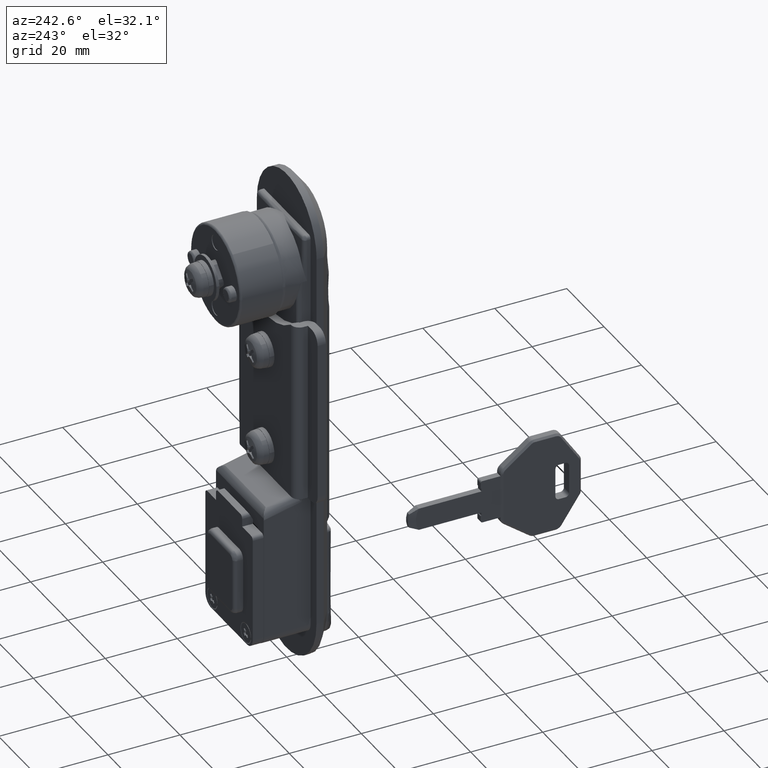
[diagram: clean part render]
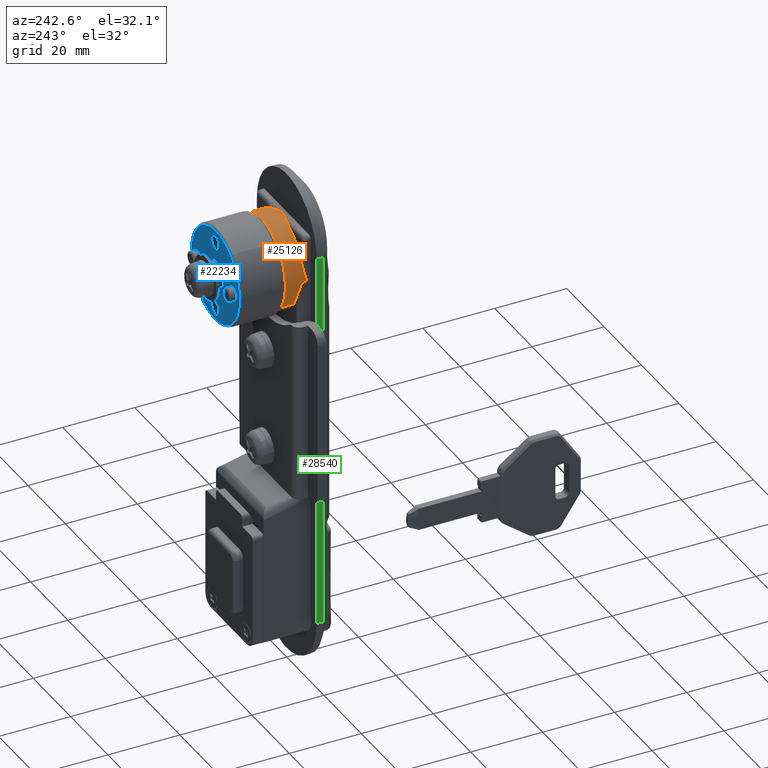
[diagram: same view with three faces highlighted in distinct colors, each labeled with its STEP entity id]
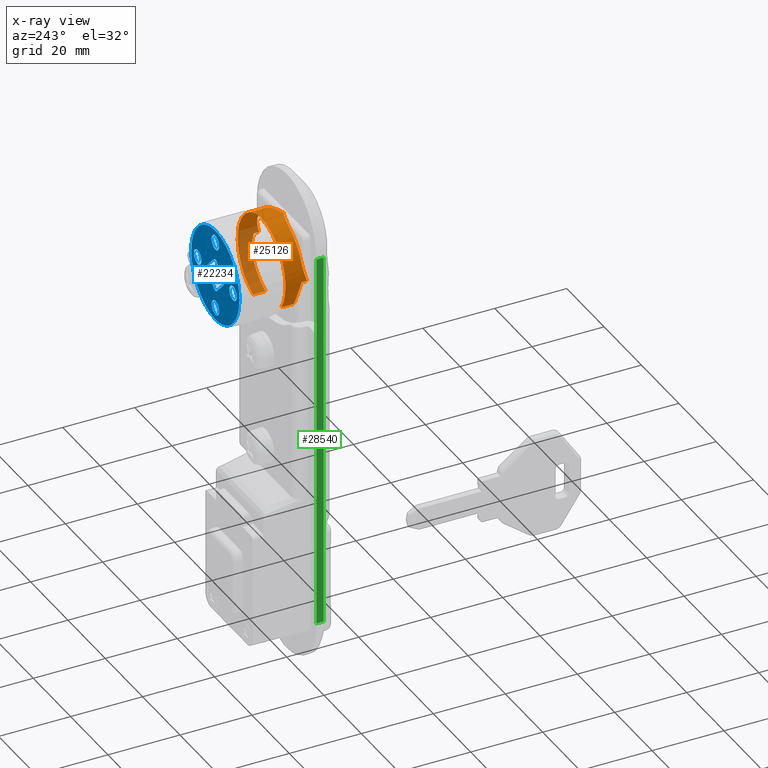
[diagram: x-ray of the same camera — body ghosted, the three highlighted faces saturated]
A machine part, auxiliary view with three faces highlighted in distinct colors.
The next image is the same camera in x-ray (body ghosted, the three faces saturated) — at least one of them is partly hidden behind the body in this view.
Their STEP definitions:

[orange] entity #25126 — the highlighted face is a freeform B-spline surface patch.
#24810=CARTESIAN_POINT('',(7.150000001382224,-4.579050644034766,-11.952919944196662));
#24811=CARTESIAN_POINT('',(7.150000001382225,-5.997858642275454,-11.409388011453791));
#24812=CARTESIAN_POINT('',(7.150000001382224,-7.249999831873780,-10.548815214362090));
#24813=CARTESIAN_POINT('',(7.150000001382225,-17.798815046235759,-3.298815381724110));
#24814=CARTESIAN_POINT('',(7.150000001382224,-10.548815213597781,7.249999832637870));
#24815=CARTESIAN_POINT('',(7.150000001382225,-3.298815380959795,17.798815046999845));
#24816=CARTESIAN_POINT('',(7.150000001382224,7.249999833402186,10.548815214361870));
#24817=CARTESIAN_POINT('',(7.150000001382225,17.798815047764172,3.298815381723883));
#24818=CARTESIAN_POINT('',(7.150000001382224,10.548815215126179,-7.249999832638097));
#24819=CARTESIAN_POINT('',(0.846249999964337,-4.579050644034766,-11.952919944196662));
#24820=CARTESIAN_POINT('',(0.846249999964337,-5.997858642275454,-11.409388011453791));
#24821=CARTESIAN_POINT('',(0.846249999964337,-7.249999831873780,-10.548815214362090));
#24822=CARTESIAN_POINT('',(0.846249999964337,-17.798815046235759,-3.298815381724110));
#24823=CARTESIAN_POINT('',(0.846249999964337,-10.548815213597781,7.249999832637870));
#24824=CARTESIAN_POINT('',(0.846249999964337,-3.298815380959795,17.798815046999845));
#24825=CARTESIAN_POINT('',(0.846249999964337,7.249999833402186,10.548815214361870));
#24826=CARTESIAN_POINT('',(0.846249999964337,17.798815047764172,3.298815381723883));
#24827=CARTESIAN_POINT('',(0.846249999964337,10.548815215126179,-7.249999832638097));
#24835=(BOUNDED_SURFACE()B_SPLINE_SURFACE(2,1,((#24810,#24819),(#24811,#24820),(#24812,#24821),(#24813,#24822),(#24814,#24823),(#24815,#24824),(#24816,#24825),(#24817,#24826),(#24818,#24827)),.UNSPECIFIED.,.F.,.F.,.U.)B_SPLINE_SURFACE_WITH_KNOTS((3,2,2,2,3),(2,2),(0.0,3.393237502960454,24.600971896463282,45.808706289966118,67.016440683468943),(0.0,6.303750001417888),.UNSPECIFIED.)GEOMETRIC_REPRESENTATION_ITEM()RATIONAL_B_SPLINE_SURFACE(((0.921270302782944,0.921270302782944),(0.953137084989848,0.953137084989848),(1.0,1.0),(0.707106781186548,0.707106781186548),(1.0,1.0),(0.707106781186548,0.707106781186548),(1.0,1.0),(0.707106781186548,0.707106781186548),(1.0,1.0)))REPRESENTATION_ITEM('')SURFACE());
#24836=CARTESIAN_POINT('',(3.499999999998567,-4.579050644041379,-11.952919944194139));
#24837=VERTEX_POINT('',#24836);
#24838=CARTESIAN_POINT('',(3.499999999998960,-11.799999999735800,-4.959838705866060));
#24839=VERTEX_POINT('',#24838);
#24840=CARTESIAN_POINT('',(3.499999999998567,-4.579050644041379,-11.952919944194138));
#24841=CARTESIAN_POINT('',(3.499999999998677,-9.682383066361270,-9.997881532808250));
#24842=CARTESIAN_POINT('',(3.499999999998960,-11.799999999735800,-4.959838705866060));
#24850=(BOUNDED_CURVE()B_SPLINE_CURVE(2,(#24840,#24841,#24842),.UNSPECIFIED.,.F.,.U.)B_SPLINE_CURVE_WITH_KNOTS((3,3),(0.658297067399934,1.0),.UNSPECIFIED.)CURVE()GEOMETRIC_REPRESENTATION_ITEM()RATIONAL_B_SPLINE_CURVE((0.927697253472302,0.885811614018996,1.0))REPRESENTATION_ITEM(''));
#24851=EDGE_CURVE('',#24837,#24839,#24850,.T.);
#24852=ORIENTED_EDGE('',*,*,#24851,.F.);
#24853=CARTESIAN_POINT('',(6.999999999999301,-4.579050644104433,-11.952919944170000));
#24854=VERTEX_POINT('',#24853);
#24855=CARTESIAN_POINT('',(6.999999999999301,-4.579050644104433,-11.952919944170000));
#24856=CARTESIAN_POINT('',(3.499999999998567,-4.579050644041379,-11.952919944194139));
#24857=QUASI_UNIFORM_CURVE('',1,(#24855,#24856),.UNSPECIFIED.,.F.,.U.);
#24858=EDGE_CURVE('',#24854,#24837,#24857,.T.);
#24859=ORIENTED_EDGE('',*,*,#24858,.F.);
#24860=CARTESIAN_POINT('',(6.999999999999300,7.642029E-010,12.800000000000150));
#24861=VERTEX_POINT('',#24860);
#24862=CARTESIAN_POINT('',(6.999999999999301,-4.579050644104434,-11.952919944170000));
#24863=CARTESIAN_POINT('',(6.999999999999300,-12.799999999236057,-8.803551955215514));
#24864=CARTESIAN_POINT('',(6.999999999999300,-12.799999999236061,-1.136868E-013));
#24865=CARTESIAN_POINT('',(6.999999999999300,-12.799999999236057,12.800000000000150));
#24866=CARTESIAN_POINT('',(6.999999999999300,7.642029E-010,12.800000000000150));
#24874=(BOUNDED_CURVE()B_SPLINE_CURVE(2,(#24862,#24863,#24864,#24865,#24866),.UNSPECIFIED.,.F.,.U.)B_SPLINE_CURVE_WITH_KNOTS((3,2,3),(0.560749030873936,0.750000000000000,1.0),.UNSPECIFIED.)CURVE()GEOMETRIC_REPRESENTATION_ITEM()RATIONAL_B_SPLINE_CURVE((0.892245166213956,0.778278697956407,1.0,0.707106781186548,1.0))REPRESENTATION_ITEM(''));
#24875=EDGE_CURVE('',#24854,#24861,#24874,.T.);
#24876=ORIENTED_EDGE('',*,*,#24875,.T.);
#24877=CARTESIAN_POINT('',(7.000000001348484,12.800000000764459,-8.886080E-014));
#24878=VERTEX_POINT('',#24877);
#24879=CARTESIAN_POINT('',(6.999999999999300,7.642029E-010,12.800000000000150));
#24880=CARTESIAN_POINT('',(6.999999999999300,12.800000000764411,12.800000000000152));
#24881=CARTESIAN_POINT('',(7.000000001348484,12.800000000764463,-8.886080E-014));
#24889=(BOUNDED_CURVE()B_SPLINE_CURVE(2,(#24879,#24880,#24881),.UNSPECIFIED.,.F.,.U.)B_SPLINE_CURVE_WITH_KNOTS((3,3),(0.0,0.249999999999999),.UNSPECIFIED.)CURVE()GEOMETRIC_REPRESENTATION_ITEM()RATIONAL_B_SPLINE_CURVE((1.0,0.707106781186548,0.999999999999998))REPRESENTATION_ITEM(''));
#24890=EDGE_CURVE('',#24861,#24878,#24889,.T.);
#24891=ORIENTED_EDGE('',*,*,#24890,.T.);
#24892=CARTESIAN_POINT('',(7.000000000720023,10.548815215124179,-7.249999832639374));
#24893=VERTEX_POINT('',#24892);
#24894=CARTESIAN_POINT('',(7.000000001348482,12.800000000764456,-8.886080E-014));
#24895=CARTESIAN_POINT('',(7.000000000742459,12.800000000764481,-3.974505644325337));
#24896=CARTESIAN_POINT('',(7.000000000720023,10.548815215124183,-7.249999832639374));
#24904=(BOUNDED_CURVE()B_SPLINE_CURVE(2,(#24894,#24895,#24896),.UNSPECIFIED.,.F.,.U.)B_SPLINE_CURVE_WITH_KNOTS((3,3),(0.249999999999999,0.347270617136061),.UNSPECIFIED.)CURVE()GEOMETRIC_REPRESENTATION_ITEM()RATIONAL_B_SPLINE_CURVE((1.000000000000002,0.886040383404193,0.860760144687290))REPRESENTATION_ITEM(''));
#24905=EDGE_CURVE('',#24878,#24893,#24904,.T.);
#24906=ORIENTED_EDGE('',*,*,#24905,.T.);
#24907=CARTESIAN_POINT('',(3.499999999998831,10.548815215097340,-7.249999832680063));
#24908=VERTEX_POINT('',#24907);
#24909=CARTESIAN_POINT('',(7.000000000720023,10.548815215124179,-7.249999832639374));
#24910=CARTESIAN_POINT('',(3.499999999998831,10.548815215097340,-7.249999832680063));
#24911=QUASI_UNIFORM_CURVE('',1,(#24909,#24910),.UNSPECIFIED.,.F.,.U.);
#24912=EDGE_CURVE('',#24893,#24908,#24911,.T.);
#24913=ORIENTED_EDGE('',*,*,#24912,.T.);
#24914=CARTESIAN_POINT('',(3.499999999998960,11.800000000264200,-4.959838708245140));
#24915=VERTEX_POINT('',#24914);
#24916=CARTESIAN_POINT('',(3.499999999998960,11.800000000264200,-4.959838708245140));
#24917=CARTESIAN_POINT('',(3.499999999998892,11.291748010857519,-6.169025907170577));
#24918=CARTESIAN_POINT('',(3.499999999998831,10.548815215097344,-7.249999832680063));
#24926=(BOUNDED_CURVE()B_SPLINE_CURVE(2,(#24916,#24917,#24918),.UNSPECIFIED.,.F.,.U.)B_SPLINE_CURVE_WITH_KNOTS((3,3),(0.0,0.089806107575686),.UNSPECIFIED.)CURVE()GEOMETRIC_REPRESENTATION_ITEM()RATIONAL_B_SPLINE_CURVE((1.0,0.969989094336202,0.950758839162350))REPRESENTATION_ITEM(''));
#24927=EDGE_CURVE('',#24915,#24908,#24926,.T.);
#24928=ORIENTED_EDGE('',*,*,#24927,.F.);
#24929=CARTESIAN_POINT('',(2.499999999998520,12.800000000264260,5.817889E-015));
#24930=VERTEX_POINT('',#24929);
#24931=CARTESIAN_POINT('',(3.499999999998960,11.800000000264200,-4.959838708245140));
#24932=CARTESIAN_POINT('',(3.499999999998942,11.884726401125709,-4.758265312630199));
#24933=CARTESIAN_POINT('',(3.489410561102811,11.963668342394341,-4.556020745211326));
#24934=CARTESIAN_POINT('',(3.453537798859467,12.110622360669330,-4.149639897037440));
#24935=CARTESIAN_POINT('',(3.428183058231920,12.178629006988340,-3.945510197913007));
#24936=CARTESIAN_POINT('',(3.366498447819640,12.304047770071691,-3.535033759906537));
#24937=CARTESIAN_POINT('',(3.330141097253486,12.361457771318429,-3.328689545036238));
#24938=CARTESIAN_POINT('',(3.269298858079651,12.439743335096690,-3.017323126720502));
#24939=CARTESIAN_POINT('',(3.247980087713689,12.464500908161719,-2.913338776275924));
#24940=CARTESIAN_POINT('',(3.203706951709756,12.511218809301370,-2.705684686132547));
#24941=CARTESIAN_POINT('',(3.180730773472400,12.533207482249100,-2.601903785874174));
#24942=CARTESIAN_POINT('',(3.062277185823335,12.636448401412650,-2.083089334613497));
#24943=CARTESIAN_POINT('',(2.956275037693372,12.697696606606980,-1.668289420689425));
#24944=CARTESIAN_POINT('',(2.789417914019506,12.759035347792880,-1.044360658288625));
#24945=CARTESIAN_POINT('',(2.732451460042499,12.774372291553499,-0.836103531556464));
#24946=CARTESIAN_POINT('',(2.645890247418877,12.789734710444090,-0.523068055615682));
#24947=CARTESIAN_POINT('',(2.602330502764916,12.795503596742360,-0.366387998105746));
#24948=CARTESIAN_POINT('',(2.558515623957663,12.798393812567589,-0.209421671846968));
#24949=CARTESIAN_POINT('',(2.529267041885287,12.799678810158770,-0.104709001437801));
#24950=CARTESIAN_POINT('',(2.514579409056580,12.800000000514320,-0.052161805838285));
#24951=CARTESIAN_POINT('',(2.499999999998520,12.800000000264260,5.817889E-015));
#24952=B_SPLINE_CURVE_WITH_KNOTS('',3,(#24931,#24932,#24933,#24934,#24935,#24936,#24937,#24938,#24939,#24940,#24941,#24942,#24943,#24944,#24945,#24946,#24947,#24948,#24949,#24950,#24951),.UNSPECIFIED.,.F.,.U.,(4,2,2,2,2,2,2,2,1,2,4),(0.0,0.125000000000000,0.250000000000000,0.375000000000000,0.437500000000000,0.500000000000000,0.750000000000000,0.875000000000000,0.937500000000000,0.968750000000000,1.0),.UNSPECIFIED.);
#24953=EDGE_CURVE('',#24915,#24930,#24952,.T.);
#24954=ORIENTED_EDGE('',*,*,#24953,.T.);
#24955=CARTESIAN_POINT('',(0.999999999998920,12.800000000264200,-7.759148E-016));
#24956=VERTEX_POINT('',#24955);
#24957=CARTESIAN_POINT('',(0.999999999998920,12.800000000264200,-7.759148E-016));
#24958=CARTESIAN_POINT('',(2.499999999998520,12.800000000264260,5.817889E-015));
#24959=QUASI_UNIFORM_CURVE('',1,(#24957,#24958),.UNSPECIFIED.,.F.,.U.);
#24960=EDGE_CURVE('',#24956,#24930,#24959,.T.);
#24961=ORIENTED_EDGE('',*,*,#24960,.F.);
#24962=CARTESIAN_POINT('',(1.999999999998920,11.800000000264200,4.959838708244910));
#24963=VERTEX_POINT('',#24962);
#24964=CARTESIAN_POINT('',(0.999999999998920,12.800000000264200,-7.759148E-016));
#24965=CARTESIAN_POINT('',(1.014579409057003,12.800000000514320,0.052161805838050));
#24966=CARTESIAN_POINT('',(1.029267041885679,12.799678810158770,0.104709001437574));
#24967=CARTESIAN_POINT('',(1.058515623958044,12.798393812567589,0.209421671846741));
#24968=CARTESIAN_POINT('',(1.102330502765284,12.795503596742360,0.366387998105521));
#24969=CARTESIAN_POINT('',(1.145890247419230,12.789734710444090,0.523068055615458));
#24970=CARTESIAN_POINT('',(1.232451460042826,12.774372291553499,0.836103531556242));
#24971=CARTESIAN_POINT('',(1.289417914019818,12.759035347792880,1.044360658288402));
#24972=CARTESIAN_POINT('',(1.456275037693629,12.697696606606980,1.668289420689205));
#24973=CARTESIAN_POINT('',(1.562277185823551,12.636448401412650,2.083089334613282));
#24974=CARTESIAN_POINT('',(1.680730773472570,12.533207482249090,2.601903785873958));
#24975=CARTESIAN_POINT('',(1.703706951709918,12.511218809301360,2.705684686132333));
#24976=CARTESIAN_POINT('',(1.747980087713832,12.464500908161710,2.913338776275710));
#24977=CARTESIAN_POINT('',(1.769298858079784,12.439743335096690,3.017323126720289));
#24978=CARTESIAN_POINT('',(1.830141097253592,12.361457771318429,3.328689545036021));
#24979=CARTESIAN_POINT('',(1.866498447819729,12.304047770071680,3.535033759906322));
#24980=CARTESIAN_POINT('',(1.928183058231970,12.178629006988340,3.945510197912787));
#24981=CARTESIAN_POINT('',(1.953537798859498,12.110622360669330,4.149639897037218));
#24982=CARTESIAN_POINT('',(1.989410561102806,11.963668342394341,4.556020745211100));
#24983=CARTESIAN_POINT('',(1.999999999998920,11.884726401125700,4.758265312629972));
#24984=CARTESIAN_POINT('',(1.999999999998920,11.800000000264200,4.959838708244910));
#24985=B_SPLINE_CURVE_WITH_KNOTS('',3,(#24964,#24965,#24966,#24967,#24968,#24969,#24970,#24971,#24972,#24973,#24974,#24975,#24976,#24977,#24978,#24979,#24980,#24981,#24982,#24983,#24984),.UNSPECIFIED.,.F.,.U.,(4,2,1,2,2,2,2,2,2,2,4),(0.0,0.031250000000000,0.062500000000000,0.125000000000000,0.250000000000000,0.500000000000000,0.562500000000000,0.625000000000000,0.750000000000000,0.875000000000000,1.0),.UNSPECIFIED.);
#24986=EDGE_CURVE('',#24956,#24963,#24985,.T.);
#24987=ORIENTED_EDGE('',*,*,#24986,.T.);
#24988=CARTESIAN_POINT('',(1.999999999998920,4.959838707869841,11.799999999978800));
#24989=VERTEX_POINT('',#24988);
#24990=CARTESIAN_POINT('',(1.999999999998920,4.959838707869835,11.799999999978800));
#24991=CARTESIAN_POINT('',(1.999999999998921,9.775750403398478,9.775750403578090));
#24992=CARTESIAN_POINT('',(1.999999999998920,11.800000000264200,4.959838708244910));
#25000=(BOUNDED_CURVE()B_SPLINE_CURVE(2,(#24990,#24991,#24992),.UNSPECIFIED.,.F.,.U.)CURVE()GEOMETRIC_REPRESENTATION_ITEM()QUASI_UNIFORM_CURVE()RATIONAL_B_SPLINE_CURVE((1.0,0.925859031375435,1.0))REPRESENTATION_ITEM(''));
#25001=EDGE_CURVE('',#24989,#24963,#25000,.T.);
#25002=ORIENTED_EDGE('',*,*,#25001,.F.);
#25003=CARTESIAN_POINT('',(0.999999999998920,7.642029E-010,12.799999999989460));
#25004=VERTEX_POINT('',#25003);
#25005=CARTESIAN_POINT('',(1.999999999998920,4.959838707869841,11.799999999978800));
#25006=CARTESIAN_POINT('',(1.999999999998921,4.759411127486527,11.884244785670189));
#25007=CARTESIAN_POINT('',(1.989510246050507,4.557368802864121,11.963165707613561));
#25008=CARTESIAN_POINT('',(1.953577547801588,4.149872247376940,12.110553434214630));
#25009=CARTESIAN_POINT('',(1.928073176302037,3.944420022713683,12.179018644209091));
#25010=CARTESIAN_POINT('',(1.865682417857304,3.529967883219172,12.305538232616440));
#25011=CARTESIAN_POINT('',(1.829107638317043,3.323093304383682,12.362948075915311));
#25012=CARTESIAN_POINT('',(1.748190766750017,2.909614863621512,12.466738770912720));
#25013=CARTESIAN_POINT('',(1.703826864077867,2.702986345373103,12.513124874368311));
#25014=CARTESIAN_POINT('',(1.562171666302486,2.082780063981878,12.636445085979011));
#25015=CARTESIAN_POINT('',(1.456422292938541,1.668866781989239,12.697611065341221));
#25016=CARTESIAN_POINT('',(1.289694334339554,1.045380947607032,12.758949386646940));
#25017=CARTESIAN_POINT('',(1.232731393637459,0.837122195829004,12.774307958499501));
#25018=CARTESIAN_POINT('',(1.146112790472208,0.523869691640127,12.789702494350569));
#25019=CARTESIAN_POINT('',(1.102508796590042,0.367027390550821,12.795487402335970));
#25020=CARTESIAN_POINT('',(1.058626656445020,0.209819291284723,12.798387665456589));
#25021=CARTESIAN_POINT('',(1.029328220969988,0.104927839967644,12.799677383377510));
#25022=CARTESIAN_POINT('',(1.014618141150967,0.052299706109097,12.799999999989460));
#25023=CARTESIAN_POINT('',(0.999999999998920,7.642024E-010,12.799999999989460));
#25024=B_SPLINE_CURVE_WITH_KNOTS('',3,(#25005,#25006,#25007,#25008,#25009,#25010,#25011,#25012,#25013,#25014,#25015,#25016,#25017,#25018,#25019,#25020,#25021,#25022,#25023),.UNSPECIFIED.,.F.,.U.,(4,2,2,2,2,2,2,1,2,4),(0.0,0.125000000000000,0.250000000000000,0.375000000000000,0.500000000000000,0.750000000000000,0.875000000000000,0.937500000000000,0.968750000000000,1.0),.UNSPECIFIED.);
#25025=EDGE_CURVE('',#24989,#25004,#25024,.T.);
#25026=ORIENTED_EDGE('',*,*,#25025,.T.);
#25027=CARTESIAN_POINT('',(1.999999999998920,-4.959838706341430,11.799999999978800));
#25028=VERTEX_POINT('',#25027);
#25029=CARTESIAN_POINT('',(0.999999999998920,7.642029E-010,12.799999999989460));
#25030=CARTESIAN_POINT('',(1.029213709724266,-0.104518651425666,12.799999999989460));
#25031=CARTESIAN_POINT('',(1.058551002600142,-0.209478455020774,12.798713882041270));
#25032=CARTESIAN_POINT('',(1.116896122065571,-0.418778793315199,12.793575832402110));
#25033=CARTESIAN_POINT('',(1.145970332475474,-0.523355974209287,12.789724396167379));
#25034=CARTESIAN_POINT('',(1.232678456294643,-0.836927802471096,12.774324180871620));
#25035=CARTESIAN_POINT('',(1.289801719595781,-1.045762039121654,12.758933920084880));
#25036=CARTESIAN_POINT('',(1.401452983669305,-1.463327471297754,12.717809785126819));
#25037=CARTESIAN_POINT('',(1.455984967195622,-1.672057643189671,12.692076552494949));
#25038=CARTESIAN_POINT('',(1.561059270570663,-2.089771734623175,12.630021301370510));
#25039=CARTESIAN_POINT('',(1.611434684087522,-2.298106288768420,12.593783139661170));
#25040=CARTESIAN_POINT('',(1.753193645606944,-2.919874551565207,12.469683145367579));
#25041=CARTESIAN_POINT('',(1.835800727215239,-3.330888859065416,12.366402441527400));
#25042=CARTESIAN_POINT('',(1.927983341157264,-3.944115730974800,12.179065382049600));
#25043=CARTESIAN_POINT('',(1.953360525380202,-4.147981153154016,12.111197969352890));
#25044=CARTESIAN_POINT('',(1.980363690619520,-4.453361093264872,12.000803762361921));
#25045=CARTESIAN_POINT('',(1.987508352296854,-4.555086266479140,11.962571256401301));
#25046=CARTESIAN_POINT('',(1.997342778100739,-4.758497045095987,11.883123656305500));
#25047=CARTESIAN_POINT('',(1.999999999998919,-4.859586122626093,11.842138698724520));
#25048=CARTESIAN_POINT('',(1.999999999998920,-4.959838706341429,11.799999999978800));
#25049=B_SPLINE_CURVE_WITH_KNOTS('',3,(#25029,#25030,#25031,#25032,#25033,#25034,#25035,#25036,#25037,#25038,#25039,#25040,#25041,#25042,#25043,#25044,#25045,#25046,#25047,#25048),.UNSPECIFIED.,.F.,.U.,(4,2,2,2,2,2,2,2,2,4),(0.0,0.062500000000000,0.125000000000000,0.250000000000000,0.375000000000000,0.500000000000000,0.750000000000000,0.875000000000000,0.937500000000000,1.0),.UNSPECIFIED.);
#25050=EDGE_CURVE('',#25004,#25028,#25049,.T.);
#25051=ORIENTED_EDGE('',*,*,#25050,.T.);
#25052=CARTESIAN_POINT('',(1.999999999998920,-11.799999999735800,4.959838705865830));
#25053=VERTEX_POINT('',#25052);
#25054=CARTESIAN_POINT('',(1.999999999998920,-11.799999999735791,4.959838705865822));
#25055=CARTESIAN_POINT('',(1.999999999998921,-9.775750403257757,9.775750402994815));
#25056=CARTESIAN_POINT('',(1.999999999998920,-4.959838706341432,11.799999999978800));
#25064=(BOUNDED_CURVE()B_SPLINE_CURVE(2,(#25054,#25055,#25056),.UNSPECIFIED.,.F.,.U.)CURVE()GEOMETRIC_REPRESENTATION_ITEM()QUASI_UNIFORM_CURVE()RATIONAL_B_SPLINE_CURVE((1.0,0.925859031337343,1.0))REPRESENTATION_ITEM(''));
#25065=EDGE_CURVE('',#25053,#25028,#25064,.T.);
#25066=ORIENTED_EDGE('',*,*,#25065,.F.);
#25067=CARTESIAN_POINT('',(0.999999999998920,-12.799999999735800,-7.759148E-016));
#25068=VERTEX_POINT('',#25067);
#25069=CARTESIAN_POINT('',(1.999999999998920,-11.799999999735800,4.959838705865830));
#25070=CARTESIAN_POINT('',(1.999999999998920,-11.884726400447979,4.758265310492387));
#25071=CARTESIAN_POINT('',(1.989410561139614,-11.963668341583000,4.556020743315370));
#25072=CARTESIAN_POINT('',(1.953537799019225,-12.110622359618770,4.149639895628602));
#25073=CARTESIAN_POINT('',(1.928183058478216,-12.178629005832200,3.945510196749382));
#25074=CARTESIAN_POINT('',(1.866498448281816,-12.304047768730820,3.535033759237550));
#25075=CARTESIAN_POINT('',(1.830141097844971,-12.361457769898440,3.328689544616676));
#25076=CARTESIAN_POINT('',(1.769298858900644,-12.439743333577420,3.017323126678003));
#25077=CARTESIAN_POINT('',(1.747980088612925,-12.464500906618470,2.913338776337249));
#25078=CARTESIAN_POINT('',(1.703706952754589,-12.511218807736711,2.705684686297853));
#25079=CARTESIAN_POINT('',(1.680730774586869,-12.533207480684110,2.601903786051115));
#25080=CARTESIAN_POINT('',(1.562277187279083,-12.636448399877221,2.083089334675191));
#25081=CARTESIAN_POINT('',(1.456275039284780,-12.697696605183610,1.668289420142040));
#25082=CARTESIAN_POINT('',(1.289417916681159,-12.759035346441159,1.044360656230548));
#25083=CARTESIAN_POINT('',(1.232451463040469,-12.774372290211829,0.836103528935448));
#25084=CARTESIAN_POINT('',(1.145890252899141,-12.789734709083779,0.523068051598051));
#25085=CARTESIAN_POINT('',(1.102330509482318,-12.795503595364440,0.366387993378318));
#25086=CARTESIAN_POINT('',(1.058515637223819,-12.798393811158290,0.209421665050438));
#25087=CARTESIAN_POINT('',(1.029267069269140,-12.799678808725410,0.104708990783624));
#25088=CARTESIAN_POINT('',(1.014579773524061,-12.799999999735800,0.052161703897047));
#25089=CARTESIAN_POINT('',(0.999999999998920,-12.799999999735800,-7.759148E-016));
#25090=B_SPLINE_CURVE_WITH_KNOTS('',3,(#25069,#25070,#25071,#25072,#25073,#25074,#25075,#25076,#25077,#25078,#25079,#25080,#25081,#25082,#25083,#25084,#25085,#25086,#25087,#25088,#25089),.UNSPECIFIED.,.F.,.U.,(4,2,2,2,2,2,2,2,1,2,4),(0.0,0.125000000000000,0.250000000000000,0.375000000000000,0.437500000000000,0.500000000000000,0.750000000000000,0.875000000000000,0.937500000000000,0.968750000000000,1.0),.UNSPECIFIED.);
#25091=EDGE_CURVE('',#25053,#25068,#25090,.T.);
#25092=ORIENTED_EDGE('',*,*,#25091,.T.);
#25093=CARTESIAN_POINT('',(2.499999999998520,-12.799999999735800,5.817889E-015));
#25094=VERTEX_POINT('',#25093);
#25095=CARTESIAN_POINT('',(0.999999999998920,-12.799999999735800,-7.759148E-016));
#25096=CARTESIAN_POINT('',(2.499999999998520,-12.799999999735800,5.817889E-015));
#25097=QUASI_UNIFORM_CURVE('',1,(#25095,#25096),.UNSPECIFIED.,.F.,.U.);
#25098=EDGE_CURVE('',#25068,#25094,#25097,.T.);
#25099=ORIENTED_EDGE('',*,*,#25098,.T.);
#25100=CARTESIAN_POINT('',(2.499999999998520,-12.799999999735800,5.817889E-015));
#25101=CARTESIAN_POINT('',(2.514579773523694,-12.799999999735800,-0.052161703897266));
#25102=CARTESIAN_POINT('',(2.529267069268750,-12.799678808725410,-0.104708990783850));
#25103=CARTESIAN_POINT('',(2.558515637223437,-12.798393811158279,-0.209421665050664));
#25104=CARTESIAN_POINT('',(2.602330509481950,-12.795503595364440,-0.366387993378544));
#25105=CARTESIAN_POINT('',(2.645890252898787,-12.789734709083771,-0.523068051598276));
#25106=CARTESIAN_POINT('',(2.732451463040143,-12.774372290211829,-0.836103528935671));
#25107=CARTESIAN_POINT('',(2.789417916680854,-12.759035346441159,-1.044360656230770));
#25108=CARTESIAN_POINT('',(2.956275039284527,-12.697696605183610,-1.668289420142257));
#25109=CARTESIAN_POINT('',(3.062277187278867,-12.636448399877221,-2.083089334675406));
#25110=CARTESIAN_POINT('',(3.180730774586698,-12.533207480684119,-2.601903786051327));
#25111=CARTESIAN_POINT('',(3.203706952754427,-12.511218807736711,-2.705684686298068));
#25112=CARTESIAN_POINT('',(3.247980088612781,-12.464500906618470,-2.913338776337463));
#25113=CARTESIAN_POINT('',(3.269298858900510,-12.439743333577431,-3.017323126678220));
#25114=CARTESIAN_POINT('',(3.330141097844865,-12.361457769898440,-3.328689544616891));
#25115=CARTESIAN_POINT('',(3.366498448281728,-12.304047768730831,-3.535033759237765));
#25116=CARTESIAN_POINT('',(3.428183058478165,-12.178629005832200,-3.945510196749600));
#25117=CARTESIAN_POINT('',(3.453537799019193,-12.110622359618770,-4.149639895628822));
#25118=CARTESIAN_POINT('',(3.489410561139619,-11.963668341583000,-4.556020743315593));
#25119=CARTESIAN_POINT('',(3.499999999998943,-11.884726400447979,-4.758265310492615));
#25120=CARTESIAN_POINT('',(3.499999999998960,-11.799999999735800,-4.959838705866060));
#25121=B_SPLINE_CURVE_WITH_KNOTS('',3,(#25100,#25101,#25102,#25103,#25104,#25105,#25106,#25107,#25108,#25109,#25110,#25111,#25112,#25113,#25114,#25115,#25116,#25117,#25118,#25119,#25120),.UNSPECIFIED.,.F.,.U.,(4,2,1,2,2,2,2,2,2,2,4),(0.0,0.031250000000000,0.062500000000000,0.125000000000000,0.250000000000000,0.500000000000000,0.562500000000000,0.625000000000000,0.750000000000000,0.875000000000000,1.0),.UNSPECIFIED.);
#25122=EDGE_CURVE('',#25094,#24839,#25121,.T.);
#25123=ORIENTED_EDGE('',*,*,#25122,.T.);
#25124=EDGE_LOOP('',(#24852,#24859,#24876,#24891,#24906,#24913,#24928,#24954,#24961,#24987,#25002,#25026,#25051,#25066,#25092,#25099,#25123));
#25125=FACE_OUTER_BOUND('',#25124,.T.);
#25126=ADVANCED_FACE('',(#25125),#24835,.T.);

[blue] entity #22234 — the highlighted face is a freeform B-spline surface patch.
#19738=CARTESIAN_POINT('',(19.599999999998840,-1.986019052586908,9.736068470642916));
#19739=VERTEX_POINT('',#19738);
#19745=CARTESIAN_POINT('',(19.599999999998850,1.858780E-011,7.500000000304400));
#19746=VERTEX_POINT('',#19745);
#19747=CARTESIAN_POINT('',(19.599999999998843,-1.986019052586909,9.736068470642916));
#19748=CARTESIAN_POINT('',(19.599999999998843,-1.999999999981412,9.618448240644055));
#19749=CARTESIAN_POINT('',(19.599999999998850,-1.999999999981412,9.500000000304400));
#19750=CARTESIAN_POINT('',(19.599999999998854,-1.999999999981411,7.500000000304402));
#19751=CARTESIAN_POINT('',(19.599999999998850,1.858780E-011,7.500000000304400));
#19759=(BOUNDED_CURVE()B_SPLINE_CURVE(2,(#19747,#19748,#19749,#19750,#19751),.UNSPECIFIED.,.F.,.U.)B_SPLINE_CURVE_WITH_KNOTS((3,2,3),(0.229562473341197,0.250000000000000,0.500000000000000),.UNSPECIFIED.)CURVE()GEOMETRIC_REPRESENTATION_ITEM()RATIONAL_B_SPLINE_CURVE((0.956026753845961,0.976055948129269,1.0,0.707106781186548,1.0))REPRESENTATION_ITEM(''));
#19760=EDGE_CURVE('',#19739,#19746,#19759,.T.);
#19762=CARTESIAN_POINT('',(19.599999999998840,1.996269596850194,9.377902921036394));
#19763=VERTEX_POINT('',#19762);
#19764=CARTESIAN_POINT('',(19.599999999998850,1.858780E-011,7.500000000304400));
#19765=CARTESIAN_POINT('',(19.599999999998843,1.881412133455517,7.500000000304402));
#19766=CARTESIAN_POINT('',(19.599999999998843,1.996269596850193,9.377902921036394));
#19774=(BOUNDED_CURVE()B_SPLINE_CURVE(2,(#19764,#19765,#19766),.UNSPECIFIED.,.F.,.U.)B_SPLINE_CURVE_WITH_KNOTS((3,3),(0.500000000000000,0.739332962207690),.UNSPECIFIED.)CURVE()GEOMETRIC_REPRESENTATION_ITEM()RATIONAL_B_SPLINE_CURVE((1.0,0.719603993323325,0.976072041599737))REPRESENTATION_ITEM(''));
#19775=EDGE_CURVE('',#19746,#19763,#19774,.T.);
#19849=CARTESIAN_POINT('',(19.599999999998850,1.858780E-011,11.500000000304400));
#19850=VERTEX_POINT('',#19849);
#19851=CARTESIAN_POINT('',(19.599999999998843,1.996269596850193,9.377902921036394));
#19852=CARTESIAN_POINT('',(19.599999999998847,2.000000000018589,9.438894473508377));
#19853=CARTESIAN_POINT('',(19.599999999998850,2.000000000018588,9.500000000304400));
#19854=CARTESIAN_POINT('',(19.599999999998854,2.000000000018588,11.500000000304398));
#19855=CARTESIAN_POINT('',(19.599999999998850,1.858780E-011,11.500000000304400));
#19863=(BOUNDED_CURVE()B_SPLINE_CURVE(2,(#19851,#19852,#19853,#19854,#19855),.UNSPECIFIED.,.F.,.U.)B_SPLINE_CURVE_WITH_KNOTS((3,2,3),(0.739332962207690,0.750000000000000,1.0),.UNSPECIFIED.)CURVE()GEOMETRIC_REPRESENTATION_ITEM()RATIONAL_B_SPLINE_CURVE((0.976072041599737,0.987502787863222,1.0,0.707106781186548,1.0))REPRESENTATION_ITEM(''));
#19864=EDGE_CURVE('',#19763,#19850,#19863,.T.);
#19866=CARTESIAN_POINT('',(19.599999999998850,1.858780E-011,11.500000000304400));
#19867=CARTESIAN_POINT('',(19.599999999998847,-1.776349050037667,11.500000000304398));
#19868=CARTESIAN_POINT('',(19.599999999998840,-1.986019052586908,9.736068470642916));
#19876=(BOUNDED_CURVE()B_SPLINE_CURVE(2,(#19866,#19867,#19868),.UNSPECIFIED.,.F.,.U.)B_SPLINE_CURVE_WITH_KNOTS((3,3),(0.0,0.229562473341197),.UNSPECIFIED.)CURVE()GEOMETRIC_REPRESENTATION_ITEM()RATIONAL_B_SPLINE_CURVE((1.0,0.731050833057278,0.956026753845961))REPRESENTATION_ITEM(''));
#19877=EDGE_CURVE('',#19850,#19739,#19876,.T.);
#19924=CARTESIAN_POINT('',(19.599999999998850,-1.986019052586908,-9.263931529357084));
#19925=VERTEX_POINT('',#19924);
#19931=CARTESIAN_POINT('',(19.599999999998850,1.858780E-011,-11.499999999695600));
#19932=VERTEX_POINT('',#19931);
#19933=CARTESIAN_POINT('',(19.599999999998850,-1.986019052586908,-9.263931529357084));
#19934=CARTESIAN_POINT('',(19.599999999998847,-1.999999999981413,-9.381551759355947));
#19935=CARTESIAN_POINT('',(19.599999999998850,-1.999999999981412,-9.499999999695602));
#19936=CARTESIAN_POINT('',(19.599999999998854,-1.999999999981411,-11.499999999695602));
#19937=CARTESIAN_POINT('',(19.599999999998850,1.858780E-011,-11.499999999695600));
#19945=(BOUNDED_CURVE()B_SPLINE_CURVE(2,(#19933,#19934,#19935,#19936,#19937),.UNSPECIFIED.,.F.,.U.)B_SPLINE_CURVE_WITH_KNOTS((3,2,3),(0.229562473341197,0.250000000000000,0.500000000000000),.UNSPECIFIED.)CURVE()GEOMETRIC_REPRESENTATION_ITEM()RATIONAL_B_SPLINE_CURVE((0.956026753845961,0.976055948129269,1.0,0.707106781186548,1.0))REPRESENTATION_ITEM(''));
#19946=EDGE_CURVE('',#19925,#19932,#19945,.T.);
#19948=CARTESIAN_POINT('',(19.599999999998850,1.996269596850194,-9.622097078963604));
#19949=VERTEX_POINT('',#19948);
#19950=CARTESIAN_POINT('',(19.599999999998850,1.858780E-011,-11.499999999695600));
#19951=CARTESIAN_POINT('',(19.599999999998843,1.881412133455517,-11.499999999695602));
#19952=CARTESIAN_POINT('',(19.599999999998843,1.996269596850194,-9.622097078963604));
#19960=(BOUNDED_CURVE()B_SPLINE_CURVE(2,(#19950,#19951,#19952),.UNSPECIFIED.,.F.,.U.)B_SPLINE_CURVE_WITH_KNOTS((3,3),(0.500000000000000,0.739332962207690),.UNSPECIFIED.)CURVE()GEOMETRIC_REPRESENTATION_ITEM()RATIONAL_B_SPLINE_CURVE((1.0,0.719603993323325,0.976072041599737))REPRESENTATION_ITEM(''));
#19961=EDGE_CURVE('',#19932,#19949,#19960,.T.);
#20035=CARTESIAN_POINT('',(19.599999999998850,1.858780E-011,-7.499999999695601));
#20036=VERTEX_POINT('',#20035);
#20037=CARTESIAN_POINT('',(19.599999999998847,1.996269596850194,-9.622097078963604));
#20038=CARTESIAN_POINT('',(19.599999999998843,2.000000000018588,-9.561105526491623));
#20039=CARTESIAN_POINT('',(19.599999999998850,2.000000000018588,-9.499999999695602));
#20040=CARTESIAN_POINT('',(19.599999999998854,2.000000000018588,-7.499999999695600));
#20041=CARTESIAN_POINT('',(19.599999999998850,1.858780E-011,-7.499999999695601));
#20049=(BOUNDED_CURVE()B_SPLINE_CURVE(2,(#20037,#20038,#20039,#20040,#20041),.UNSPECIFIED.,.F.,.U.)B_SPLINE_CURVE_WITH_KNOTS((3,2,3),(0.739332962207690,0.750000000000000,1.0),.UNSPECIFIED.)CURVE()GEOMETRIC_REPRESENTATION_ITEM()RATIONAL_B_SPLINE_CURVE((0.976072041599737,0.987502787863223,1.0,0.707106781186548,1.0))REPRESENTATION_ITEM(''));
#20050=EDGE_CURVE('',#19949,#20036,#20049,.T.);
#20052=CARTESIAN_POINT('',(19.599999999998850,1.858780E-011,-7.499999999695601));
#20053=CARTESIAN_POINT('',(19.599999999998847,-1.776349050037667,-7.499999999695601));
#20054=CARTESIAN_POINT('',(19.599999999998850,-1.986019052586908,-9.263931529357084));
#20062=(BOUNDED_CURVE()B_SPLINE_CURVE(2,(#20052,#20053,#20054),.UNSPECIFIED.,.F.,.U.)B_SPLINE_CURVE_WITH_KNOTS((3,3),(0.0,0.229562473341197),.UNSPECIFIED.)CURVE()GEOMETRIC_REPRESENTATION_ITEM()RATIONAL_B_SPLINE_CURVE((1.0,0.731050833057278,0.956026753845961))REPRESENTATION_ITEM(''));
#20063=EDGE_CURVE('',#20036,#19925,#20062,.T.);
#20157=CARTESIAN_POINT('',(19.599999999998950,-8.049249695740420,-1.376707504846761));
#20158=VERTEX_POINT('',#20157);
#20164=CARTESIAN_POINT('',(19.599999999998950,-9.499999999981410,2.000000000304396));
#20165=VERTEX_POINT('',#20164);
#20166=CARTESIAN_POINT('',(19.599999999998946,-8.049249695740420,-1.376707504846761));
#20167=CARTESIAN_POINT('',(19.599999999998950,-7.499999999981410,-0.797917776278680));
#20168=CARTESIAN_POINT('',(19.599999999998950,-7.499999999981410,3.043959E-010));
#20169=CARTESIAN_POINT('',(19.599999999998950,-7.499999999981410,2.000000000304397));
#20170=CARTESIAN_POINT('',(19.599999999998950,-9.499999999981410,2.000000000304396));
#20178=(BOUNDED_CURVE()B_SPLINE_CURVE(2,(#20166,#20167,#20168,#20169,#20170),.UNSPECIFIED.,.F.,.U.)B_SPLINE_CURVE_WITH_KNOTS((3,2,3),(0.128950644590554,0.250000000000000,0.500000000000000),.UNSPECIFIED.)CURVE()GEOMETRIC_REPRESENTATION_ITEM()RATIONAL_B_SPLINE_CURVE((0.853699674051137,0.858181858635335,1.0,0.707106781186548,1.0))REPRESENTATION_ITEM(''));
#20179=EDGE_CURVE('',#20158,#20165,#20178,.T.);
#20181=CARTESIAN_POINT('',(19.599999999998950,-10.876708113633329,-1.450749726493074));
#20182=VERTEX_POINT('',#20181);
#20183=CARTESIAN_POINT('',(19.599999999998950,-9.499999999981410,2.000000000304396));
#20184=CARTESIAN_POINT('',(19.599999999998950,-11.499999999981409,2.000000000304397));
#20185=CARTESIAN_POINT('',(19.599999999998950,-11.499999999981410,3.043959E-010));
#20186=CARTESIAN_POINT('',(19.599999999998946,-11.499999999981409,-0.859268658974952));
#20187=CARTESIAN_POINT('',(19.599999999998957,-10.876708113633327,-1.450749726493074));
#20195=(BOUNDED_CURVE()B_SPLINE_CURVE(2,(#20183,#20184,#20185,#20186,#20187),.UNSPECIFIED.,.F.,.U.)B_SPLINE_CURVE_WITH_KNOTS((3,2,3),(0.500000000000000,0.750000000000000,0.878950581291345),.UNSPECIFIED.)CURVE()GEOMETRIC_REPRESENTATION_ITEM()RATIONAL_B_SPLINE_CURVE((1.0,0.707106781186548,1.0,0.848924996710849,0.853699669363521))REPRESENTATION_ITEM(''));
#20196=EDGE_CURVE('',#20165,#20182,#20195,.T.);
#20240=CARTESIAN_POINT('',(19.599999999998950,-9.499999999981410,-1.999999999695604));
#20241=VERTEX_POINT('',#20240);
#20242=CARTESIAN_POINT('',(19.599999999998957,-10.876708113633327,-1.450749726493074));
#20243=CARTESIAN_POINT('',(19.599999999998953,-10.297918262764147,-1.999999999695604));
#20244=CARTESIAN_POINT('',(19.599999999998950,-9.499999999981410,-1.999999999695604));
#20252=(BOUNDED_CURVE()B_SPLINE_CURVE(2,(#20242,#20243,#20244),.UNSPECIFIED.,.F.,.U.)B_SPLINE_CURVE_WITH_KNOTS((3,3),(0.878950581291345,1.0),.UNSPECIFIED.)CURVE()GEOMETRIC_REPRESENTATION_ITEM()RATIONAL_B_SPLINE_CURVE((0.853699669363521,0.858181784475698,1.0))REPRESENTATION_ITEM(''));
#20253=EDGE_CURVE('',#20182,#20241,#20252,.T.);
#20255=CARTESIAN_POINT('',(19.599999999998950,-9.499999999981410,-1.999999999695604));
#20256=CARTESIAN_POINT('',(19.599999999998957,-8.640730843841340,-1.999999999695605));
#20257=CARTESIAN_POINT('',(19.599999999998950,-8.049249695740420,-1.376707504846761));
#20265=(BOUNDED_CURVE()B_SPLINE_CURVE(2,(#20255,#20256,#20257),.UNSPECIFIED.,.F.,.U.)B_SPLINE_CURVE_WITH_KNOTS((3,3),(0.0,0.128950644590554),.UNSPECIFIED.)CURVE()GEOMETRIC_REPRESENTATION_ITEM()RATIONAL_B_SPLINE_CURVE((1.0,0.848924922551212,0.853699674051137))REPRESENTATION_ITEM(''));
#20266=EDGE_CURVE('',#20241,#20158,#20265,.T.);
#20373=CARTESIAN_POINT('',(19.599999999998950,10.950750304259580,-1.376707504846759));
#20374=VERTEX_POINT('',#20373);
#20380=CARTESIAN_POINT('',(19.599999999998950,9.500000000018590,2.000000000304397));
#20381=VERTEX_POINT('',#20380);
#20382=CARTESIAN_POINT('',(19.599999999998950,10.950750304259580,-1.376707504846759));
#20383=CARTESIAN_POINT('',(19.599999999998950,11.500000000018590,-0.797917776278677));
#20384=CARTESIAN_POINT('',(19.599999999998950,11.500000000018590,3.043971E-010));
#20385=CARTESIAN_POINT('',(19.599999999998950,11.500000000018590,2.000000000304398));
#20386=CARTESIAN_POINT('',(19.599999999998950,9.500000000018590,2.000000000304397));
#20394=(BOUNDED_CURVE()B_SPLINE_CURVE(2,(#20382,#20383,#20384,#20385,#20386),.UNSPECIFIED.,.F.,.U.)B_SPLINE_CURVE_WITH_KNOTS((3,2,3),(0.128950644590554,0.250000000000000,0.500000000000000),.UNSPECIFIED.)CURVE()GEOMETRIC_REPRESENTATION_ITEM()RATIONAL_B_SPLINE_CURVE((0.853699674051137,0.858181858635335,1.0,0.707106781186548,1.0))REPRESENTATION_ITEM(''));
#20395=EDGE_CURVE('',#20374,#20381,#20394,.T.);
#20397=CARTESIAN_POINT('',(19.599999999998950,8.123291886366673,-1.450749726493072));
#20398=VERTEX_POINT('',#20397);
#20399=CARTESIAN_POINT('',(19.599999999998950,9.500000000018590,2.000000000304397));
#20400=CARTESIAN_POINT('',(19.599999999998950,7.500000000018590,2.000000000304398));
#20401=CARTESIAN_POINT('',(19.599999999998950,7.500000000018589,3.043971E-010));
#20402=CARTESIAN_POINT('',(19.599999999998946,7.500000000018589,-0.859268658974951));
#20403=CARTESIAN_POINT('',(19.599999999998957,8.123291886366673,-1.450749726493072));
#20411=(BOUNDED_CURVE()B_SPLINE_CURVE(2,(#20399,#20400,#20401,#20402,#20403),.UNSPECIFIED.,.F.,.U.)B_SPLINE_CURVE_WITH_KNOTS((3,2,3),(0.500000000000000,0.750000000000000,0.878950581291345),.UNSPECIFIED.)CURVE()GEOMETRIC_REPRESENTATION_ITEM()RATIONAL_B_SPLINE_CURVE((1.0,0.707106781186548,1.0,0.848924996710849,0.853699669363521))REPRESENTATION_ITEM(''));
#20412=EDGE_CURVE('',#20381,#20398,#20411,.T.);
#20456=CARTESIAN_POINT('',(19.599999999998950,9.500000000018590,-1.999999999695603));
#20457=VERTEX_POINT('',#20456);
#20458=CARTESIAN_POINT('',(19.599999999998957,8.123291886366673,-1.450749726493072));
#20459=CARTESIAN_POINT('',(19.599999999998953,8.702081737235851,-1.999999999695603));
#20460=CARTESIAN_POINT('',(19.599999999998950,9.500000000018590,-1.999999999695603));
#20468=(BOUNDED_CURVE()B_SPLINE_CURVE(2,(#20458,#20459,#20460),.UNSPECIFIED.,.F.,.U.)B_SPLINE_CURVE_WITH_KNOTS((3,3),(0.878950581291345,1.0),.UNSPECIFIED.)CURVE()GEOMETRIC_REPRESENTATION_ITEM()RATIONAL_B_SPLINE_CURVE((0.853699669363521,0.858181784475698,1.0))REPRESENTATION_ITEM(''));
#20469=EDGE_CURVE('',#20398,#20457,#20468,.T.);
#20471=CARTESIAN_POINT('',(19.599999999998950,9.500000000018590,-1.999999999695603));
#20472=CARTESIAN_POINT('',(19.599999999998950,10.359269156158664,-1.999999999695603));
#20473=CARTESIAN_POINT('',(19.599999999998950,10.950750304259580,-1.376707504846759));
#20481=(BOUNDED_CURVE()B_SPLINE_CURVE(2,(#20471,#20472,#20473),.UNSPECIFIED.,.F.,.U.)B_SPLINE_CURVE_WITH_KNOTS((3,3),(0.0,0.128950644590554),.UNSPECIFIED.)CURVE()GEOMETRIC_REPRESENTATION_ITEM()RATIONAL_B_SPLINE_CURVE((1.0,0.848924922551212,0.853699674051137))REPRESENTATION_ITEM(''));
#20482=EDGE_CURVE('',#20457,#20374,#20481,.T.);
#21616=CARTESIAN_POINT('',(19.599999999998900,-12.813720189767190,-1.489488564716357));
#21617=VERTEX_POINT('',#21616);
#21631=CARTESIAN_POINT('',(19.599999999998900,2.642082E-010,12.900000000001690));
#21632=VERTEX_POINT('',#21631);
#21633=CARTESIAN_POINT('',(19.599999999998897,-12.813720189767189,-1.489488564716358));
#21634=CARTESIAN_POINT('',(19.599999999998904,-12.899999999737588,-0.747243195980083));
#21635=CARTESIAN_POINT('',(19.599999999998900,-12.899999999737590,-1.136868E-013));
#21636=CARTESIAN_POINT('',(19.599999999998897,-12.899999999737592,12.900000000001686));
#21637=CARTESIAN_POINT('',(19.599999999998900,2.642082E-010,12.900000000001690));
#21645=(BOUNDED_CURVE()B_SPLINE_CURVE(2,(#21633,#21634,#21635,#21636,#21637),.UNSPECIFIED.,.F.,.U.)B_SPLINE_CURVE_WITH_KNOTS((3,2,3),(0.729999999983866,0.750000000000000,1.0),.UNSPECIFIED.)CURVE()GEOMETRIC_REPRESENTATION_ITEM()RATIONAL_B_SPLINE_CURVE((0.956886118158905,0.976568542476022,1.0,0.707106781186547,1.0))REPRESENTATION_ITEM(''));
#21646=EDGE_CURVE('',#21617,#21632,#21645,.T.);
#21648=CARTESIAN_POINT('',(19.599999999998900,12.900000011338250,-1.137279E-013));
#21649=VERTEX_POINT('',#21648);
#21650=CARTESIAN_POINT('',(19.599999999998900,2.642082E-010,12.900000000001690));
#21651=CARTESIAN_POINT('',(19.599999999998904,12.900000000266031,12.900000000001688));
#21652=CARTESIAN_POINT('',(19.599999999998911,12.900000011338260,-1.137279E-013));
#21660=(BOUNDED_CURVE()B_SPLINE_CURVE(2,(#21650,#21651,#21652),.UNSPECIFIED.,.F.,.U.)B_SPLINE_CURVE_WITH_KNOTS((3,3),(0.0,0.250000000000000),.UNSPECIFIED.)CURVE()GEOMETRIC_REPRESENTATION_ITEM()RATIONAL_B_SPLINE_CURVE((1.0,0.707106781186547,1.0))REPRESENTATION_ITEM(''));
#21661=EDGE_CURVE('',#21632,#21649,#21660,.T.);
#21707=CARTESIAN_POINT('',(19.599999999998900,2.642082E-010,-12.900000000001921));
#21708=VERTEX_POINT('',#21707);
#21709=CARTESIAN_POINT('',(19.599999999998897,12.900000011338250,-1.137279E-013));
#21710=CARTESIAN_POINT('',(19.599999999998897,12.900000000265983,-12.900000000001915));
#21711=CARTESIAN_POINT('',(19.599999999998900,2.642082E-010,-12.900000000001921));
#21719=(BOUNDED_CURVE()B_SPLINE_CURVE(2,(#21709,#21710,#21711),.UNSPECIFIED.,.F.,.U.)B_SPLINE_CURVE_WITH_KNOTS((3,3),(0.250000000000000,0.500000000000000),.UNSPECIFIED.)CURVE()GEOMETRIC_REPRESENTATION_ITEM()RATIONAL_B_SPLINE_CURVE((0.999999999999999,0.707106781186548,1.0))REPRESENTATION_ITEM(''));
#21720=EDGE_CURVE('',#21649,#21708,#21719,.T.);
#21722=CARTESIAN_POINT('',(19.599999999998900,2.642082E-010,-12.900000000001921));
#21723=CARTESIAN_POINT('',(19.599999999998904,-11.487342939301882,-12.900000000001917));
#21724=CARTESIAN_POINT('',(19.599999999998897,-12.813720189767194,-1.489488564716357));
#21732=(BOUNDED_CURVE()B_SPLINE_CURVE(2,(#21722,#21723,#21724),.UNSPECIFIED.,.F.,.U.)B_SPLINE_CURVE_WITH_KNOTS((3,3),(0.500000000000000,0.729999999983865),.UNSPECIFIED.)CURVE()GEOMETRIC_REPRESENTATION_ITEM()RATIONAL_B_SPLINE_CURVE((1.0,0.730538238710527,0.956886118158903))REPRESENTATION_ITEM(''));
#21733=EDGE_CURVE('',#21708,#21617,#21732,.T.);
#21777=CARTESIAN_POINT('',(19.599999999998900,4.242640687137865,0.707106781490937));
#21778=VERTEX_POINT('',#21777);
#21784=CARTESIAN_POINT('',(19.599999999998850,0.707106781205198,4.242640687423600));
#21785=VERTEX_POINT('',#21784);
#21786=CARTESIAN_POINT('',(19.599999999998900,4.242640687137865,0.707106781490937));
#21787=CARTESIAN_POINT('',(19.599999999998850,0.707106781205198,4.242640687423600));
#21788=QUASI_UNIFORM_CURVE('',1,(#21786,#21787),.UNSPECIFIED.,.F.,.U.);
#21789=EDGE_CURVE('',#21778,#21785,#21788,.T.);
#21828=CARTESIAN_POINT('',(19.599999999998850,4.242640687137905,-0.707106780882100));
#21829=VERTEX_POINT('',#21828);
#21835=CARTESIAN_POINT('',(19.599999999998850,4.242640687137905,-0.707106780882100));
#21836=CARTESIAN_POINT('',(19.599999999998847,4.535533905951410,-0.414213562068699));
#21837=CARTESIAN_POINT('',(19.599999999998850,4.535533905951410,3.043967E-010));
#21838=CARTESIAN_POINT('',(19.599999999998847,4.535533905951410,0.414213562677527));
#21839=CARTESIAN_POINT('',(19.599999999998900,4.242640687137865,0.707106781490937));
#21847=(BOUNDED_CURVE()B_SPLINE_CURVE(2,(#21835,#21836,#21837,#21838,#21839),.UNSPECIFIED.,.F.,.U.)B_SPLINE_CURVE_WITH_KNOTS((3,2,3),(0.0,0.500000000000000,1.0),.UNSPECIFIED.)CURVE()GEOMETRIC_REPRESENTATION_ITEM()RATIONAL_B_SPLINE_CURVE((1.0,0.923879532511286,1.0,0.923879532511286,1.0))REPRESENTATION_ITEM(''));
#21848=EDGE_CURVE('',#21829,#21778,#21847,.T.);
#21866=CARTESIAN_POINT('',(19.599999999998850,0.707106781205363,-4.242640686814744));
#21867=VERTEX_POINT('',#21866);
#21873=CARTESIAN_POINT('',(19.599999999998850,0.707106781205363,-4.242640686814744));
#21874=CARTESIAN_POINT('',(19.599999999998850,4.242640687137905,-0.707106780882100));
#21875=QUASI_UNIFORM_CURVE('',1,(#21873,#21874),.UNSPECIFIED.,.F.,.U.);
#21876=EDGE_CURVE('',#21867,#21829,#21875,.T.);
#21911=CARTESIAN_POINT('',(19.599999999998850,-0.707106781167624,-4.242640686814695));
#21912=VERTEX_POINT('',#21911);
#21918=CARTESIAN_POINT('',(19.599999999998850,-0.707106781167624,-4.242640686814695));
#21919=CARTESIAN_POINT('',(19.599999999998847,1.884412E-011,-4.949747468001269));
#21920=CARTESIAN_POINT('',(19.599999999998850,0.707106781205364,-4.242640686814746));
#21928=(BOUNDED_CURVE()B_SPLINE_CURVE(2,(#21918,#21919,#21920),.UNSPECIFIED.,.F.,.U.)CURVE()GEOMETRIC_REPRESENTATION_ITEM()QUASI_UNIFORM_CURVE()RATIONAL_B_SPLINE_CURVE((1.0,0.707106781186560,1.0))REPRESENTATION_ITEM(''));
#21929=EDGE_CURVE('',#21912,#21867,#21928,.T.);
#21947=CARTESIAN_POINT('',(19.599999999998850,-4.242640687100329,-0.707106780882147));
#21948=VERTEX_POINT('',#21947);
#21954=CARTESIAN_POINT('',(19.599999999998850,-4.242640687100329,-0.707106780882147));
#21955=CARTESIAN_POINT('',(19.599999999998850,-0.707106781167624,-4.242640686814695));
#21956=QUASI_UNIFORM_CURVE('',1,(#21954,#21955),.UNSPECIFIED.,.F.,.U.);
#21957=EDGE_CURVE('',#21948,#21912,#21956,.T.);
#21992=CARTESIAN_POINT('',(19.599999999998850,-4.242640687100505,0.707106781491006));
#21993=VERTEX_POINT('',#21992);
#21999=CARTESIAN_POINT('',(19.599999999998850,-4.242640687100505,0.707106781491006));
#22000=CARTESIAN_POINT('',(19.599999999998854,-4.949747468286814,3.043416E-010));
#22001=CARTESIAN_POINT('',(19.599999999998850,-4.242640687100330,-0.707106780882148));
#22009=(BOUNDED_CURVE()B_SPLINE_CURVE(2,(#21999,#22000,#22001),.UNSPECIFIED.,.F.,.U.)CURVE()GEOMETRIC_REPRESENTATION_ITEM()QUASI_UNIFORM_CURVE()RATIONAL_B_SPLINE_CURVE((1.0,0.707106781186578,1.0))REPRESENTATION_ITEM(''));
#22010=EDGE_CURVE('',#21993,#21948,#22009,.T.);
#22028=CARTESIAN_POINT('',(19.599999999998850,-0.707106781167624,4.242640687423715));
#22029=VERTEX_POINT('',#22028);
#22035=CARTESIAN_POINT('',(19.599999999998850,-0.707106781167624,4.242640687423715));
#22036=CARTESIAN_POINT('',(19.599999999998850,-4.242640687100505,0.707106781491006));
#22037=QUASI_UNIFORM_CURVE('',1,(#22035,#22036),.UNSPECIFIED.,.F.,.U.);
#22038=EDGE_CURVE('',#22029,#21993,#22037,.T.);
#22072=CARTESIAN_POINT('',(19.599999999998850,0.707106781205198,4.242640687423600));
#22073=CARTESIAN_POINT('',(19.599999999998843,1.884443E-011,4.949747468610288));
#22074=CARTESIAN_POINT('',(19.599999999998850,-0.707106781167624,4.242640687423715));
#22082=(BOUNDED_CURVE()B_SPLINE_CURVE(2,(#22072,#22073,#22074),.UNSPECIFIED.,.F.,.U.)CURVE()GEOMETRIC_REPRESENTATION_ITEM()QUASI_UNIFORM_CURVE()RATIONAL_B_SPLINE_CURVE((1.0,0.707106781186561,1.0))REPRESENTATION_ITEM(''));
#22083=EDGE_CURVE('',#21785,#22029,#22082,.T.);
#22189=CARTESIAN_POINT('',(19.599999999998900,-14.188637558822821,14.188709615628801));
#22190=CARTESIAN_POINT('',(19.599999999998900,-14.188637558822821,-14.188708692949120));
#22191=CARTESIAN_POINT('',(19.599999999998900,14.188705277133810,14.188709615628801));
#22192=CARTESIAN_POINT('',(19.599999999998900,14.188705277133810,-14.188708692949120));
#22193=B_SPLINE_SURFACE_WITH_KNOTS('',1,1,((#22189,#22191),(#22190,#22192)),.UNSPECIFIED.,.F.,.F.,.U.,(2,2),(2,2),(0.0,28.377418308577919),(0.0,28.377342835956640),.UNSPECIFIED.);
#22194=ORIENTED_EDGE('',*,*,#21646,.F.);
#22195=ORIENTED_EDGE('',*,*,#21733,.F.);
#22196=ORIENTED_EDGE('',*,*,#21720,.F.);
#22197=ORIENTED_EDGE('',*,*,#21661,.F.);
#22198=EDGE_LOOP('',(#22194,#22195,#22196,#22197));
#22199=FACE_OUTER_BOUND('',#22198,.T.);
#22200=ORIENTED_EDGE('',*,*,#22083,.F.);
#22201=ORIENTED_EDGE('',*,*,#21789,.F.);
#22202=ORIENTED_EDGE('',*,*,#21848,.F.);
#22203=ORIENTED_EDGE('',*,*,#21876,.F.);
#22204=ORIENTED_EDGE('',*,*,#21929,.F.);
#22205=ORIENTED_EDGE('',*,*,#21957,.F.);
#22206=ORIENTED_EDGE('',*,*,#22010,.F.);
#22207=ORIENTED_EDGE('',*,*,#22038,.F.);
#22208=EDGE_LOOP('',(#22200,#22201,#22202,#22203,#22204,#22205,#22206,#22207));
#22209=FACE_BOUND('',#22208,.T.);
#22210=ORIENTED_EDGE('',*,*,#20482,.F.);
#22211=ORIENTED_EDGE('',*,*,#20469,.F.);
#22212=ORIENTED_EDGE('',*,*,#20412,.F.);
#22213=ORIENTED_EDGE('',*,*,#20395,.F.);
#22214=EDGE_LOOP('',(#22210,#22211,#22212,#22213));
#22215=FACE_BOUND('',#22214,.T.);
#22216=ORIENTED_EDGE('',*,*,#20266,.F.);
#22217=ORIENTED_EDGE('',*,*,#20253,.F.);
#22218=ORIENTED_EDGE('',*,*,#20196,.F.);
#22219=ORIENTED_EDGE('',*,*,#20179,.F.);
#22220=EDGE_LOOP('',(#22216,#22217,#22218,#22219));
#22221=FACE_BOUND('',#22220,.T.);
#22222=ORIENTED_EDGE('',*,*,#19961,.F.);
#22223=ORIENTED_EDGE('',*,*,#19946,.F.);
#22224=ORIENTED_EDGE('',*,*,#20063,.F.);
#22225=ORIENTED_EDGE('',*,*,#20050,.F.);
#22226=EDGE_LOOP('',(#22222,#22223,#22224,#22225));
#22227=FACE_BOUND('',#22226,.T.);
#22228=ORIENTED_EDGE('',*,*,#19775,.F.);
#22229=ORIENTED_EDGE('',*,*,#19760,.F.);
#22230=ORIENTED_EDGE('',*,*,#19877,.F.);
#22231=ORIENTED_EDGE('',*,*,#19864,.F.);
#22232=EDGE_LOOP('',(#22228,#22229,#22230,#22231));
#22233=FACE_BOUND('',#22232,.T.);
#22234=ADVANCED_FACE('',(#22199,#22209,#22215,#22221,#22227,#22233),#22193,.T.);

[green] entity #28540 — the highlighted face is a freeform B-spline surface patch.
#26766=CARTESIAN_POINT('',(-2.000000000001110,16.000000001384201,7.800000000037469));
#26767=VERTEX_POINT('',#26766);
#26829=CARTESIAN_POINT('',(-2.000000000001110,16.000000001393349,-98.199999999946613));
#26830=VERTEX_POINT('',#26829);
#26880=CARTESIAN_POINT('',(-2.000000000001110,16.000000001393349,-98.199999999946613));
#26881=CARTESIAN_POINT('',(-2.000000000001110,16.000000001384201,7.800000000037469));
#26882=QUASI_UNIFORM_CURVE('',1,(#26880,#26881),.UNSPECIFIED.,.F.,.U.);
#26883=EDGE_CURVE('',#26830,#26767,#26882,.T.);
#28393=CARTESIAN_POINT('',(-1.110223E-012,16.000000001384201,7.800000000037469));
#28394=VERTEX_POINT('',#28393);
#28417=CARTESIAN_POINT('',(-1.110223E-012,16.000000001393349,-98.199999999946613));
#28418=VERTEX_POINT('',#28417);
#28436=CARTESIAN_POINT('',(-1.110223E-012,16.000000001384201,7.800000000037469));
#28437=CARTESIAN_POINT('',(-1.110223E-012,16.000000001393349,-98.199999999946613));
#28438=QUASI_UNIFORM_CURVE('',1,(#28436,#28437),.UNSPECIFIED.,.F.,.U.);
#28439=EDGE_CURVE('',#28394,#28418,#28438,.T.);
#28516=CARTESIAN_POINT('',(-2.000000000001110,16.000000001393349,-98.199999999946613));
#28517=CARTESIAN_POINT('',(-1.110223E-012,16.000000001393349,-98.199999999946613));
#28518=QUASI_UNIFORM_CURVE('',1,(#28516,#28517),.UNSPECIFIED.,.F.,.U.);
#28519=EDGE_CURVE('',#26830,#28418,#28518,.T.);
#28525=CARTESIAN_POINT('',(-2.099899996124722,16.000000001384201,13.094700410933820));
#28526=CARTESIAN_POINT('',(-2.099899996124722,16.000000001384201,-103.494694724559910));
#28527=CARTESIAN_POINT('',(0.099900049766682,16.000000001384201,13.094700410933809));
#28528=CARTESIAN_POINT('',(0.099900049766682,16.000000001384201,-103.494694724559910));
#28529=B_SPLINE_SURFACE_WITH_KNOTS('',1,1,((#28525,#28527),(#28526,#28528)),.UNSPECIFIED.,.F.,.F.,.U.,(2,2),(2,2),(0.0,116.589395135493700),(0.0,2.199800045891403),.UNSPECIFIED.);
#28530=ORIENTED_EDGE('',*,*,#28519,.F.);
#28531=ORIENTED_EDGE('',*,*,#26883,.T.);
#28532=CARTESIAN_POINT('',(-2.000000000001110,16.000000001384201,7.800000000037469));
#28533=CARTESIAN_POINT('',(-1.110223E-012,16.000000001384201,7.800000000037469));
#28534=QUASI_UNIFORM_CURVE('',1,(#28532,#28533),.UNSPECIFIED.,.F.,.U.);
#28535=EDGE_CURVE('',#26767,#28394,#28534,.T.);
#28536=ORIENTED_EDGE('',*,*,#28535,.T.);
#28537=ORIENTED_EDGE('',*,*,#28439,.T.);
#28538=EDGE_LOOP('',(#28530,#28531,#28536,#28537));
#28539=FACE_OUTER_BOUND('',#28538,.T.);
#28540=ADVANCED_FACE('',(#28539),#28529,.F.);